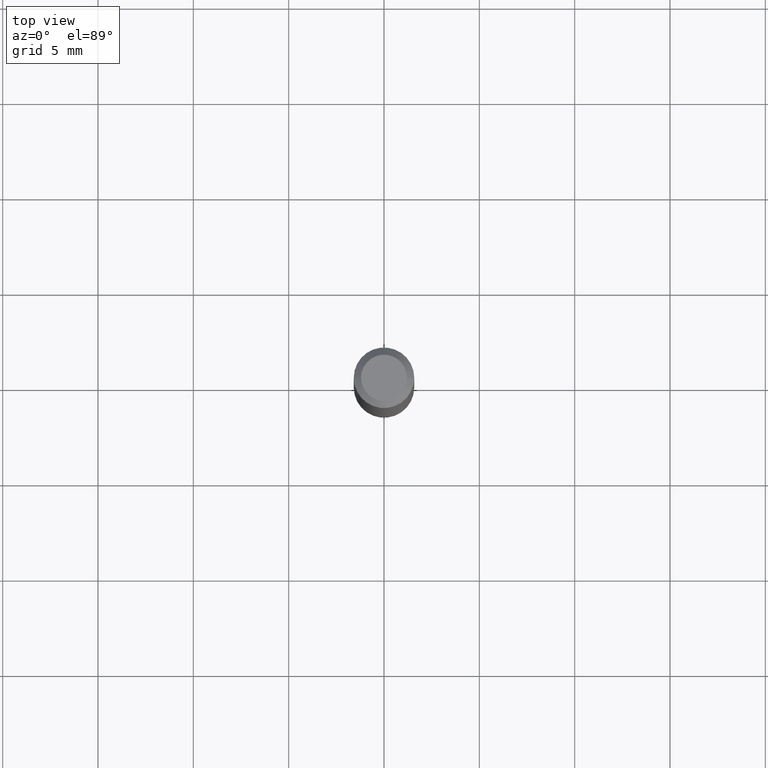
[diagram: clean part render]
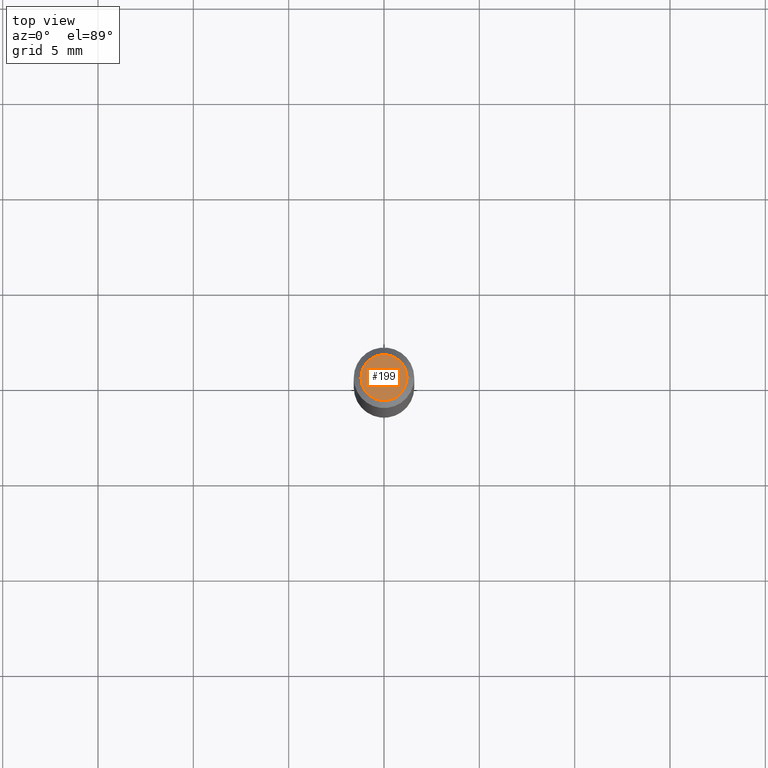
[diagram: same view with one face highlighted and labeled with its STEP entity id]
A machine part, top view. The second image highlights one B-rep face of the part: STEP entity #199.
In plain terms, the highlighted planar face has unit normal (0, -0, -1).
Its self-contained STEP definition (entity closure, byte-faithful):
#4 = DIRECTION ( 'NONE',  ( -1.000000000000000000, 6.982962677686265922E-15, -4.876176775795935793E-29 ) ) ;
#21 = EDGE_LOOP ( 'NONE', ( #422, #62 ) ) ;
#62 = ORIENTED_EDGE ( 'NONE', *, *, #265, .T. ) ;
#67 = VERTEX_POINT ( 'NONE', #391 ) ;
#85 = DIRECTION ( 'NONE',  ( 1.000000000000000000, -6.982962677686267499E-15, 4.884662768193073002E-29 ) ) ;
#99 = VERTEX_POINT ( 'NONE', #395 ) ;
#138 = AXIS2_PLACEMENT_3D ( 'NONE', #150, #196, #85 ) ;
#141 = CARTESIAN_POINT ( 'NONE',  ( -2.427605901612193195E-45, 3.465977845273231710E-31, 9.926955091278351202E-17 ) ) ;
#150 = CARTESIAN_POINT ( 'NONE',  ( -2.427605901612193195E-45, 3.465977845273231710E-31, 9.926955091278351202E-17 ) ) ;
#194 = DIRECTION ( 'NONE',  ( 1.000000000000000000, -6.982962677686267499E-15, 4.884662768193073002E-29 ) ) ;
#196 = DIRECTION ( 'NONE',  ( -2.445468806185136597E-29, 3.491481338843145583E-15, 1.000000000000000000 ) ) ;
#199 = ADVANCED_FACE ( 'NONE', ( #393 ), #216, .F. ) ;
#216 = PLANE ( 'NONE',  #334 ) ;
#235 = EDGE_CURVE ( 'NONE', #67, #99, #452, .T. ) ;
#256 = AXIS2_PLACEMENT_3D ( 'NONE', #141, #289, #194 ) ;
#265 = EDGE_CURVE ( 'NONE', #99, #67, #370, .T. ) ;
#289 = DIRECTION ( 'NONE',  ( -2.445468806185136597E-29, 3.491481338843145583E-15, 1.000000000000000000 ) ) ;
#334 = AXIS2_PLACEMENT_3D ( 'NONE', #464, #355, #4 ) ;
#355 = DIRECTION ( 'NONE',  ( 2.438088387897960049E-29, -3.491481338843145188E-15, -1.000000000000000000 ) ) ;
#370 = CIRCLE ( 'NONE', #138, 0.04749999999999999362 ) ;
#391 = CARTESIAN_POINT ( 'NONE',  ( -0.04749999999999999362, 3.578768372314212971E-16, 9.926955091278110846E-17 ) ) ;
#393 = FACE_OUTER_BOUND ( 'NONE', #21, .T. ) ;
#395 = CARTESIAN_POINT ( 'NONE',  ( 0.04749999999999999362, -4.035134999187576651E-16, 9.926955091278610047E-17 ) ) ;
#422 = ORIENTED_EDGE ( 'NONE', *, *, #235, .T. ) ;
#452 = CIRCLE ( 'NONE', #256, 0.04749999999999999362 ) ;
#464 = CARTESIAN_POINT ( 'NONE',  ( 3.316907271900976096E-16, 0.04749999999999999362, -1.162105881386576343E-16 ) ) ;